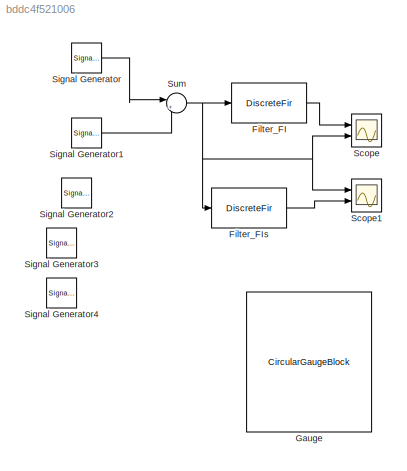
MODEL slx_bddc4f521006
KIND model
CONFIG AbsTol = auto
CONFIG EnableMultiTasking = off
CONFIG FixedStep = auto
CONFIG MaxStep = auto
CONFIG MinStep = auto
CONFIG RelTol = 1e-3
CONFIG SampleTimeConstraint = Unconstrained
CONFIG Solver = VariableStepAuto
CONFIG SolverName = VariableStepAuto
CONFIG StartTime = 0.0
CONFIG StopTime = 10.0
BLOCK [DiscreteFir] Filter_FI
  Coefficients = [0.00357339134833414319 0.00664771989932296317 0.0153299607846750941 0.0294048295549019095 0.0466563167060366144 0.0633940391432614853 0.0755543491619573571 0.0800000000000000017 0.0755543491619573571 0.0633940391432614853 0.0466563167060366144 0.0294048295549019095 0.0153299607846750941 0.00664771989932296317 0.00357339134833414319]
  InputPortMap = u0
  InputProcessing = Columns as channels (frame based)
  OutputPortMap = o0
  Ports = [1, 1]
  Tag = BlockMethodSubSystem
BLOCK [DiscreteFir] Filter_FIs
  Coefficients = [0 -0.00572009152941761745 -0.0197901124196261831 -0.0340523480472841034 0.959999999999999964 -0.0340523480472841034 -0.0197901124196261831 -0.00572009152941761745 0]
  InputPortMap = u0
  InputProcessing = Columns as channels (frame based)
  OutputPortMap = o0
  Ports = [1, 1]
  Tag = BlockMethodSubSystem
BLOCK [CircularGaugeBlock] Gauge
BLOCK [Scope] Scope
  Floating = off
  NumInputPorts = 2
  Ports = [2]
  ScopeSpecificationString = Simulink.scopes.TimeScopeBlockCfg('CurrentConfiguration', extmgr.ConfigurationSet(extmgr.Configuration('Core','General UI',true),extmgr.Configuration('Core','Source UI',true),extmgr.Configuration('Sources','WiredSimulink',true),extmgr.Configuration('Visuals','Time Domain',true,'SerializedDisplays',{struct('MinYLimReal','-2.74228','MaxYLimReal','2.74613','YLabelReal','','MinYLimMag','0.00000','MaxY...<+1390ch>
BLOCK [Scope] Scope1
  Floating = off
  NumInputPorts = 2
  Ports = [2]
  ScopeSpecificationString = Simulink.scopes.TimeScopeBlockCfg('CurrentConfiguration', extmgr.ConfigurationSet(extmgr.Configuration('Core','General UI',true),extmgr.Configuration('Core','Source UI',true),extmgr.Configuration('Sources','WiredSimulink',true,'DataLoggingVariableName','ScopeData1'),extmgr.Configuration('Visuals','Time Domain',true,'SerializedDisplays',{struct('MinYLimReal','-2.11737','MaxYLimReal','1.37601','YLab...<+1423ch>
BLOCK [SignalGenerator] Signal Generator
  Amplitude = 2
  Frequency = 0.5
  Ports = [0, 1]
BLOCK [SignalGenerator] Signal Generator1
  Amplitude = 0.2
  Frequency = 80
  Ports = [0, 1]
  Units = rad/sec
BLOCK [SignalGenerator] Signal Generator2
  Amplitude = 0.2
  Frequency = 80
  Ports = [0, 1]
  Units = rad/sec
BLOCK [SignalGenerator] Signal Generator3
  Amplitude = 0.2
  Frequency = 80
  Ports = [0, 1]
  Units = rad/sec
BLOCK [SignalGenerator] Signal Generator4
  Amplitude = 0.2
  Frequency = 80
  Ports = [0, 1]
  Units = rad/sec
BLOCK [Sum] Sum
  Inputs = |++
  Ports = [2, 1]
LINE Filter_FI:1 -> Scope:1
LINE Filter_FIs:1 -> Scope1:2
LINE Signal Generator1:1 -> Sum:2
LINE Signal Generator:1 -> Sum:1
NET Sum:1 -> Filter_FI:1, Filter_FIs:1, Scope1:1, Scope:2
note: NET lines group one-source signal fan-out (src -> all destinations, sorted); 1:1 wires keep LINE
